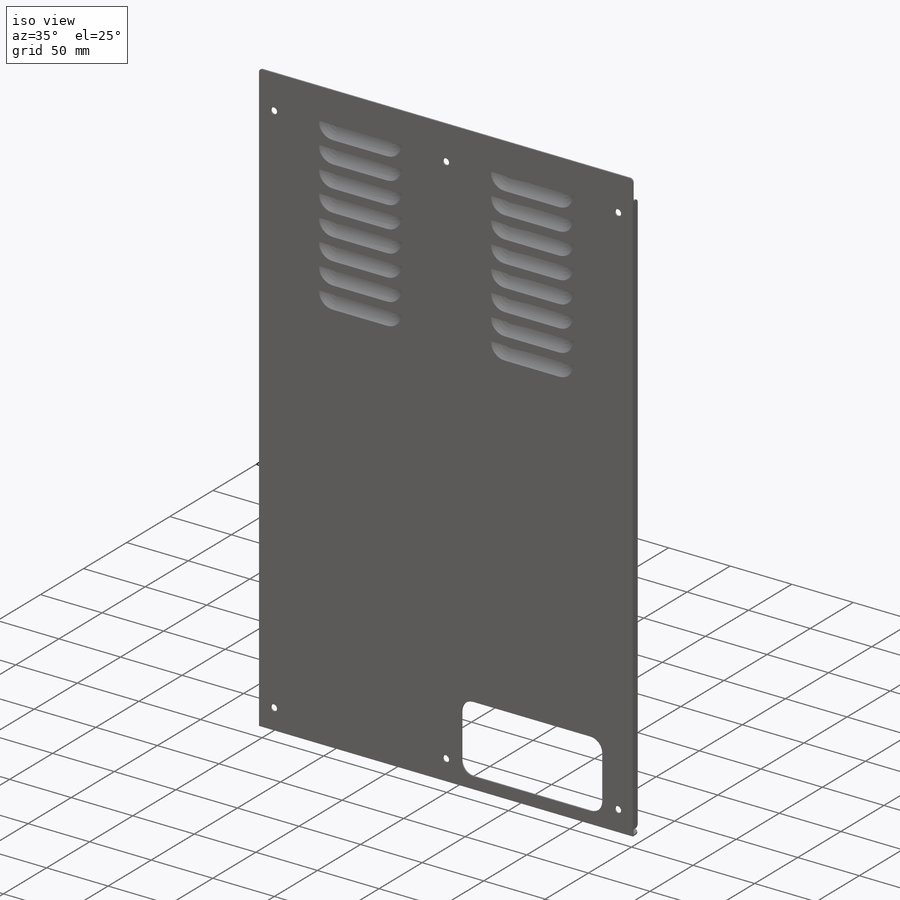
[diagram: iso view]
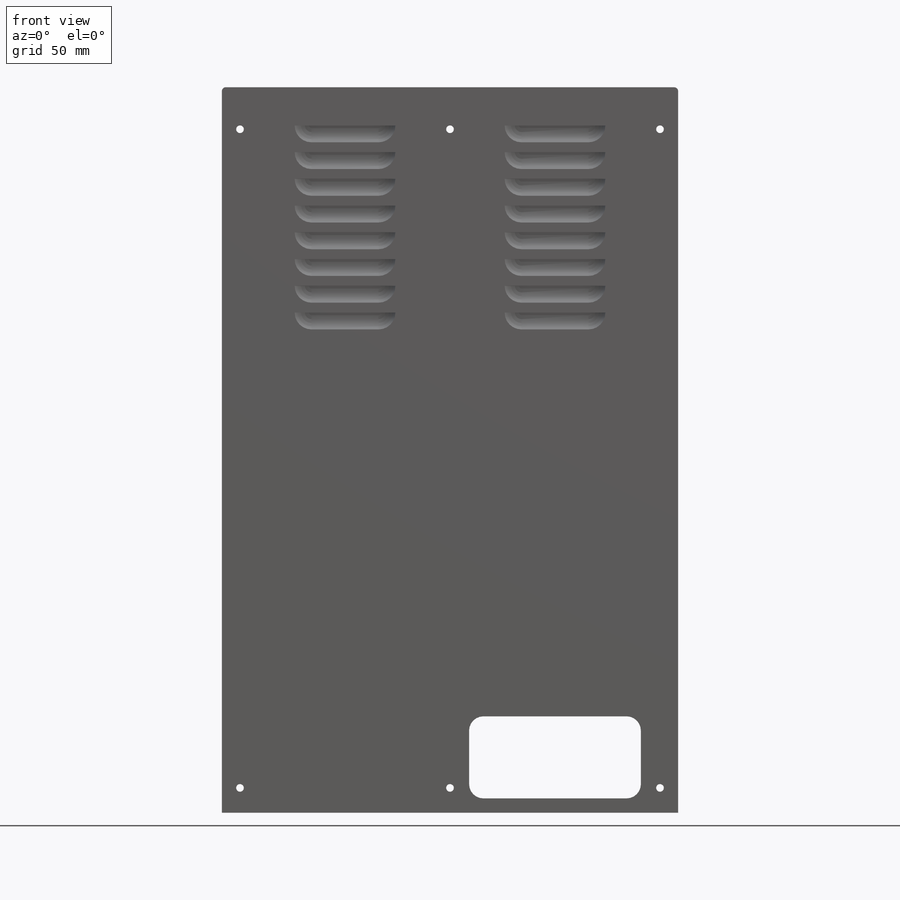
[diagram: front view]
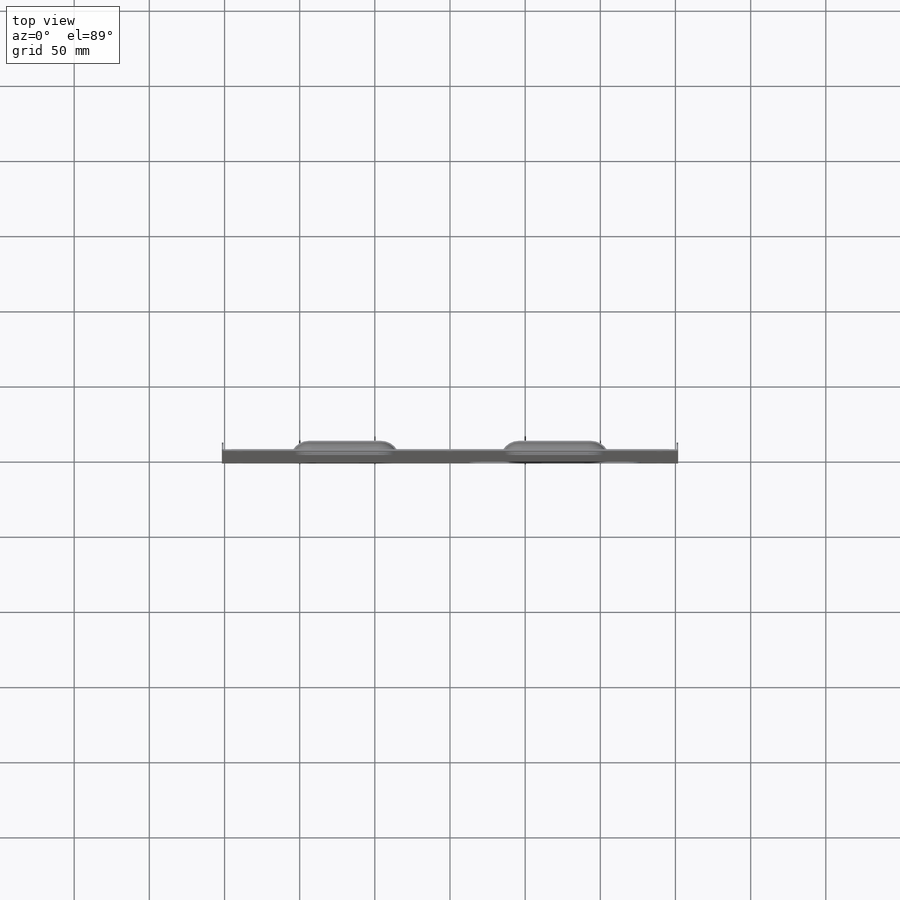
[diagram: top view]
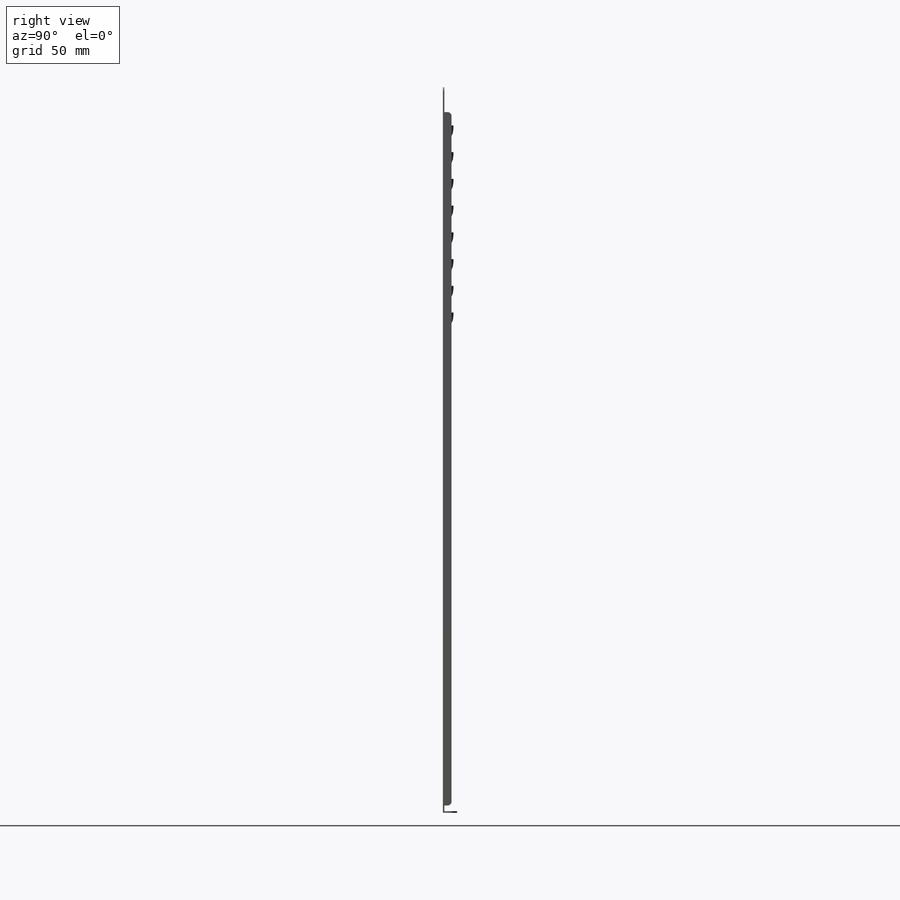
[diagram: right view]
SOLIDWORKS PART (.sldprt)
format: sldprt  version: not decoded by parser v0  size: 894,464 bytes
history: native  units: mm
features: sketch x10, extrude x5, fillet x5, cut_extrude x4, mirror x3, pattern_linear x2, material x1, shell x1, boolean_combine x1 (+12 scaffold rows collapsed)
feature tree (44):
  scaffold x12  (default folders/planes/origin — collapsed)
  material  "Material <not specified>"
  sketch  "Sketch1"  dims[D1=482.6mm D2=303.53mm]
  extrude  "Boss-Extrude1"  Depth=1.016mm
  fillet  "Fillet1"  Radius=2.54mm
  sketch  "Sketch3"  dims[D1=9.525mm]
  extrude  "Boss-Extrude3"  Depth=1.016mm
  fillet  "Fillet2"  Radius=6.35mm
  sketch  "Sketch4"
  sketch  "Sketch6"  dims[D5=9.525mm D1=3.175mm D2=~3.19532mm D3=3.175mm D4=3.175mm]
  cut_extrude  "Cut-Extrude2"  Depth=5.08mm
  sketch  "Sketch7"  dims[D1=1.5875mm D2=76.2mm D3=25.4mm D4=69.215mm D5=10.0]
  cut_extrude  "Cut-Extrude3"  Depth=2.54mm
  mirror  "Mirror2"
  sketch  "Sketch8"  dims[c1.D3=~12.406288mm c1.D4=~12.406288mm c1.D1=~69.403893mm c1.D2=~12.406288mm c1.D5=31.75mm c1.D6=25.4mm c2.D5=25.4mm c2.D6=34.925mm c2.D7=215.9mm c3.D6=~69.83984mm]
  extrude  "Boss-Extrude4"  Depth=6.096mm
  fillet  "Fillet4"  Radius=12.3952mm
  shell  "Shell1"  Thickness=1.016mm
  sketch  "Sketch10"
  cut_extrude  "Cut-Extrude4"  Depth=6.096mm
  mirror  "Mirror3"
  pattern_linear  "LPattern1"  Count1=8 Count2=1 Spacing1=17.78mm Spacing2=2.54mm
  pattern_linear  "LPattern2"  Count1=8 Count2=1 Spacing1=17.78mm Spacing2=2.54mm
  mirror  "Mirror4"
  boolean_combine  "Combine1"
  fillet  "Fillet5"  Radius=1.524mm
  sketch  "Sketch11"  dims[D1=16.51mm D2=3.81mm D3=4.7625mm]
  extrude  "Boss-Extrude5"  Depth=1.016mm
  fillet  "Fillet6"  Radius=2.54mm
  sketch  "Sketch12"  dims[D1=0.0mm]
  extrude  "Boss-Extrude6"  Depth=1.016mm
  sketch  "Sketch13"  dims[D1=5.08mm]
  cut_extrude  "Cut-Extrude5"  Depth=2.54mm
decode coverage: 25 of 31 modeling features carry decoded parameters
note: ~ marks probable driven/reference dimensions
note: suppression state not decoded; provenance and decode notes live in map.json
